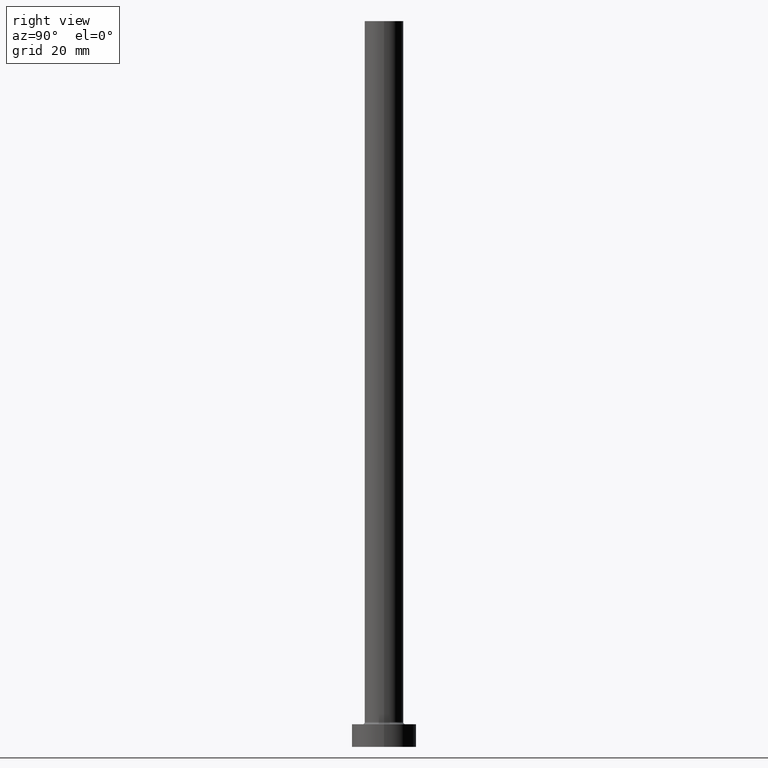
[diagram: clean part render]
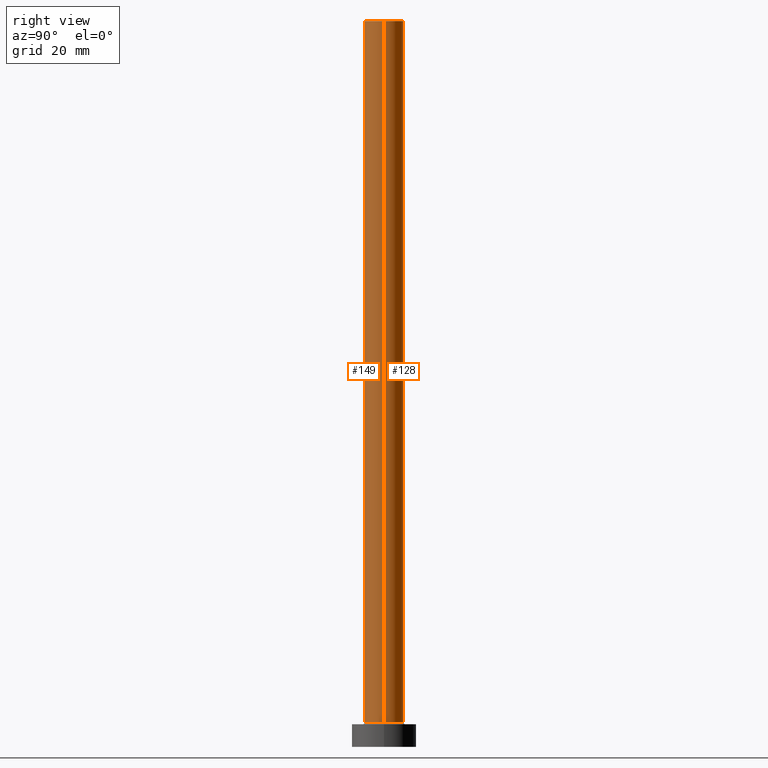
[diagram: same view with one multi-face feature highlighted, each face labeled with its STEP entity id]
A machine part, right view. The highlighted faces form ONE feature: a constant-radius fillet chain: 2 tangent blend faces with common blend radius 6 mm. The faces share edges in the B-rep.
Their STEP definitions:
[1] entity #128 (Cylinder):
#1 = AXIS2_PLACEMENT_3D ( 'NONE', #368, #460, #329 ) ;
#8 = EDGE_LOOP ( 'NONE', ( #74, #228, #102, #168 ) ) ;
#19 = CARTESIAN_POINT ( 'NONE',  ( 6.000000000000000888, 7.347880794884120722E-16, 7.700000000000012612 ) ) ;
#31 = VERTEX_POINT ( 'NONE', #19 ) ;
#40 = VERTEX_POINT ( 'NONE', #452 ) ;
#49 = AXIS2_PLACEMENT_3D ( 'NONE', #55, #321, #446 ) ;
#55 = CARTESIAN_POINT ( 'NONE',  ( 0.000000000000000000, 0.000000000000000000, 7.700000000000012612 ) ) ;
#74 = ORIENTED_EDGE ( 'NONE', *, *, #293, .F. ) ;
#102 = ORIENTED_EDGE ( 'NONE', *, *, #186, .T. ) ;
#109 = DIRECTION ( 'NONE',  ( 1.000000000000000000, 0.000000000000000000, 0.000000000000000000 ) ) ;
#118 = DIRECTION ( 'NONE',  ( -0.000000000000000000, -0.000000000000000000, -1.000000000000000000 ) ) ;
#128 = ADVANCED_FACE ( 'NONE', ( #163 ), #371, .T. ) ;
#141 = VERTEX_POINT ( 'NONE', #418 ) ;
#160 = CIRCLE ( 'NONE', #448, 6.000000000000000888 ) ;
#163 = FACE_OUTER_BOUND ( 'NONE', #8, .T. ) ;
#168 = ORIENTED_EDGE ( 'NONE', *, *, #197, .F. ) ;
#186 = EDGE_CURVE ( 'NONE', #31, #40, #312, .T. ) ;
#197 = EDGE_CURVE ( 'NONE', #379, #40, #248, .T. ) ;
#217 = CARTESIAN_POINT ( 'NONE',  ( 6.000000000000000888, 7.347880794884120722E-16, 225.0000000000000000 ) ) ;
#228 = ORIENTED_EDGE ( 'NONE', *, *, #414, .T. ) ;
#235 = DIRECTION ( 'NONE',  ( 0.000000000000000000, 0.000000000000000000, 1.000000000000000000 ) ) ;
#248 = LINE ( 'NONE', #407, #318 ) ;
#293 = EDGE_CURVE ( 'NONE', #141, #379, #160, .T. ) ;
#306 = DIRECTION ( 'NONE',  ( -0.000000000000000000, -0.000000000000000000, -1.000000000000000000 ) ) ;
#312 = CIRCLE ( 'NONE', #49, 6.000000000000000888 ) ;
#318 = VECTOR ( 'NONE', #306, 1000.000000000000000 ) ;
#321 = DIRECTION ( 'NONE',  ( 0.000000000000000000, 0.000000000000000000, 1.000000000000000000 ) ) ;
#329 = DIRECTION ( 'NONE',  ( -1.000000000000000000, 0.000000000000000000, 0.000000000000000000 ) ) ;
#368 = CARTESIAN_POINT ( 'NONE',  ( 0.000000000000000000, 0.000000000000000000, 225.0000000000000000 ) ) ;
#371 = CYLINDRICAL_SURFACE ( 'NONE', #1, 6.000000000000000888 ) ;
#374 = VECTOR ( 'NONE', #118, 1000.000000000000000 ) ;
#379 = VERTEX_POINT ( 'NONE', #400 ) ;
#400 = CARTESIAN_POINT ( 'NONE',  ( -6.000000000000000888, 0.000000000000000000, 225.0000000000000000 ) ) ;
#407 = CARTESIAN_POINT ( 'NONE',  ( -6.000000000000000888, 0.000000000000000000, 225.0000000000000000 ) ) ;
#414 = EDGE_CURVE ( 'NONE', #141, #31, #450, .T. ) ;
#418 = CARTESIAN_POINT ( 'NONE',  ( 6.000000000000000888, 7.347880794884120722E-16, 225.0000000000000000 ) ) ;
#434 = CARTESIAN_POINT ( 'NONE',  ( 0.000000000000000000, 0.000000000000000000, 225.0000000000000000 ) ) ;
#446 = DIRECTION ( 'NONE',  ( 1.000000000000000000, 0.000000000000000000, 0.000000000000000000 ) ) ;
#448 = AXIS2_PLACEMENT_3D ( 'NONE', #434, #235, #109 ) ;
#450 = LINE ( 'NONE', #217, #374 ) ;
#452 = CARTESIAN_POINT ( 'NONE',  ( -6.000000000000000888, 0.000000000000000000, 7.700000000000012612 ) ) ;
#460 = DIRECTION ( 'NONE',  ( -0.000000000000000000, -0.000000000000000000, -1.000000000000000000 ) ) ;
[2] entity #149 (Cylinder):
#4 = ORIENTED_EDGE ( 'NONE', *, *, #414, .F. ) ;
#19 = CARTESIAN_POINT ( 'NONE',  ( 6.000000000000000888, 7.347880794884120722E-16, 7.700000000000012612 ) ) ;
#31 = VERTEX_POINT ( 'NONE', #19 ) ;
#40 = VERTEX_POINT ( 'NONE', #452 ) ;
#58 = FACE_OUTER_BOUND ( 'NONE', #299, .T. ) ;
#75 = DIRECTION ( 'NONE',  ( 0.000000000000000000, 0.000000000000000000, 1.000000000000000000 ) ) ;
#86 = ORIENTED_EDGE ( 'NONE', *, *, #275, .F. ) ;
#107 = AXIS2_PLACEMENT_3D ( 'NONE', #361, #401, #354 ) ;
#111 = ORIENTED_EDGE ( 'NONE', *, *, #197, .T. ) ;
#118 = DIRECTION ( 'NONE',  ( -0.000000000000000000, -0.000000000000000000, -1.000000000000000000 ) ) ;
#141 = VERTEX_POINT ( 'NONE', #418 ) ;
#142 = AXIS2_PLACEMENT_3D ( 'NONE', #230, #75, #351 ) ;
#149 = ADVANCED_FACE ( 'NONE', ( #58 ), #444, .T. ) ;
#197 = EDGE_CURVE ( 'NONE', #379, #40, #248, .T. ) ;
#217 = CARTESIAN_POINT ( 'NONE',  ( 6.000000000000000888, 7.347880794884120722E-16, 225.0000000000000000 ) ) ;
#230 = CARTESIAN_POINT ( 'NONE',  ( 0.000000000000000000, 0.000000000000000000, 7.700000000000012612 ) ) ;
#248 = LINE ( 'NONE', #407, #318 ) ;
#275 = EDGE_CURVE ( 'NONE', #379, #141, #296, .T. ) ;
#276 = DIRECTION ( 'NONE',  ( 0.000000000000000000, 0.000000000000000000, 1.000000000000000000 ) ) ;
#296 = CIRCLE ( 'NONE', #420, 6.000000000000000888 ) ;
#299 = EDGE_LOOP ( 'NONE', ( #4, #86, #111, #340 ) ) ;
#306 = DIRECTION ( 'NONE',  ( -0.000000000000000000, -0.000000000000000000, -1.000000000000000000 ) ) ;
#308 = EDGE_CURVE ( 'NONE', #40, #31, #332, .T. ) ;
#318 = VECTOR ( 'NONE', #306, 1000.000000000000000 ) ;
#332 = CIRCLE ( 'NONE', #142, 6.000000000000000888 ) ;
#340 = ORIENTED_EDGE ( 'NONE', *, *, #308, .T. ) ;
#346 = DIRECTION ( 'NONE',  ( 1.000000000000000000, 0.000000000000000000, 0.000000000000000000 ) ) ;
#351 = DIRECTION ( 'NONE',  ( 1.000000000000000000, 0.000000000000000000, 0.000000000000000000 ) ) ;
#354 = DIRECTION ( 'NONE',  ( -1.000000000000000000, 0.000000000000000000, 0.000000000000000000 ) ) ;
#361 = CARTESIAN_POINT ( 'NONE',  ( 0.000000000000000000, 0.000000000000000000, 225.0000000000000000 ) ) ;
#374 = VECTOR ( 'NONE', #118, 1000.000000000000000 ) ;
#379 = VERTEX_POINT ( 'NONE', #400 ) ;
#387 = CARTESIAN_POINT ( 'NONE',  ( 0.000000000000000000, 0.000000000000000000, 225.0000000000000000 ) ) ;
#400 = CARTESIAN_POINT ( 'NONE',  ( -6.000000000000000888, 0.000000000000000000, 225.0000000000000000 ) ) ;
#401 = DIRECTION ( 'NONE',  ( -0.000000000000000000, -0.000000000000000000, -1.000000000000000000 ) ) ;
#407 = CARTESIAN_POINT ( 'NONE',  ( -6.000000000000000888, 0.000000000000000000, 225.0000000000000000 ) ) ;
#414 = EDGE_CURVE ( 'NONE', #141, #31, #450, .T. ) ;
#418 = CARTESIAN_POINT ( 'NONE',  ( 6.000000000000000888, 7.347880794884120722E-16, 225.0000000000000000 ) ) ;
#420 = AXIS2_PLACEMENT_3D ( 'NONE', #387, #276, #346 ) ;
#444 = CYLINDRICAL_SURFACE ( 'NONE', #107, 6.000000000000000888 ) ;
#450 = LINE ( 'NONE', #217, #374 ) ;
#452 = CARTESIAN_POINT ( 'NONE',  ( -6.000000000000000888, 0.000000000000000000, 7.700000000000012612 ) ) ;